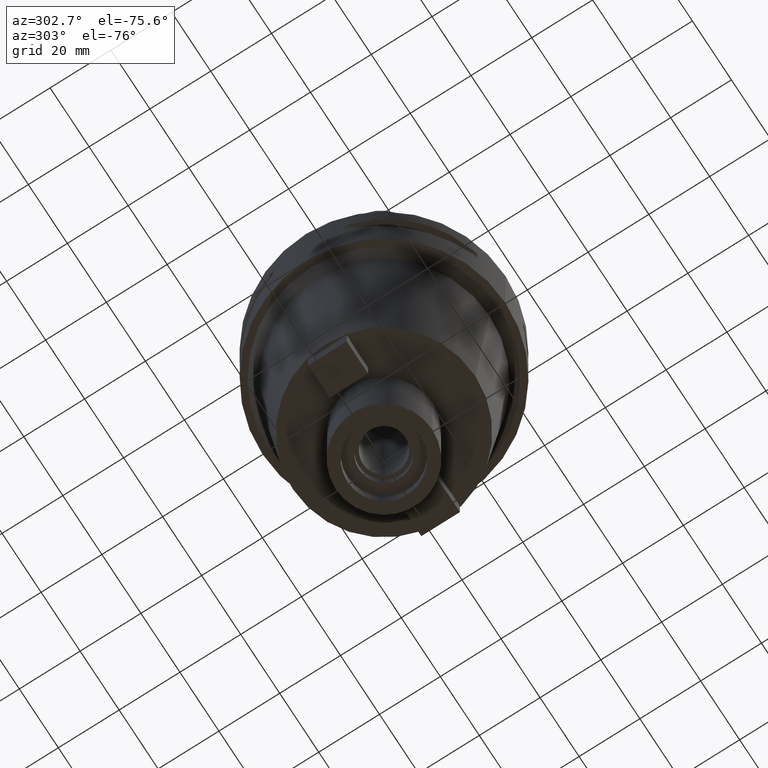
[diagram: clean part render]
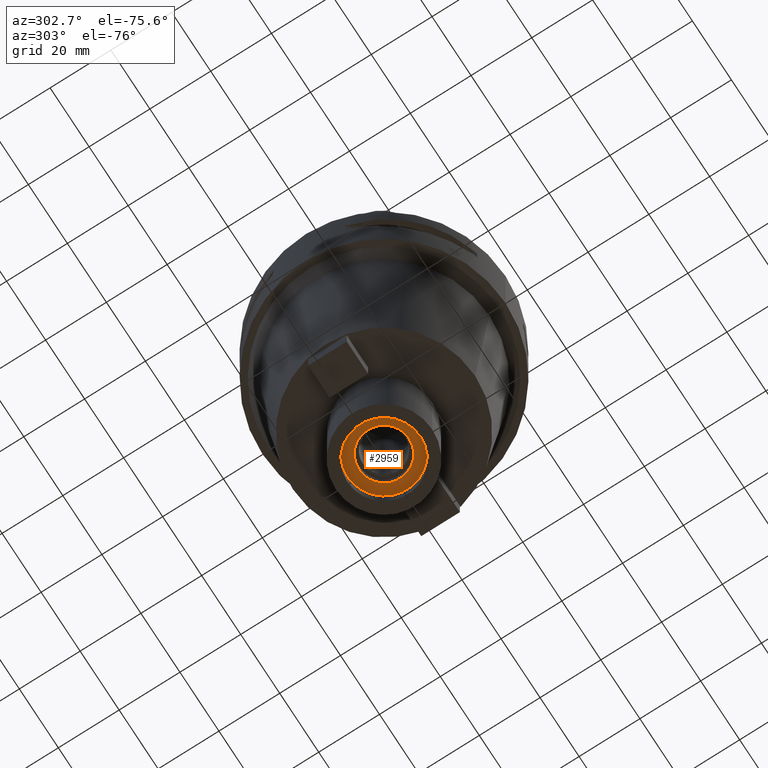
[diagram: same view with one face highlighted and labeled with its STEP entity id]
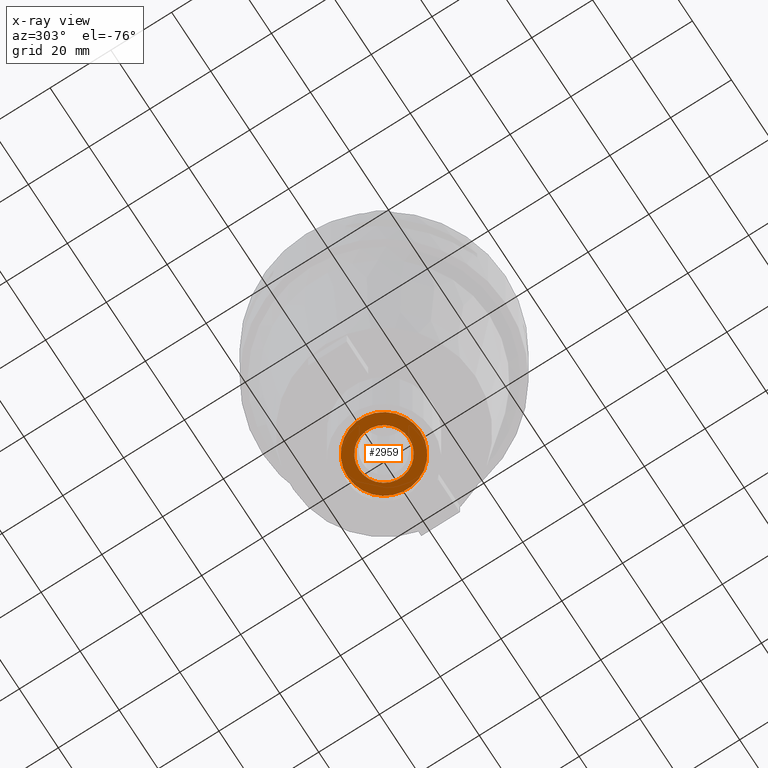
[diagram: x-ray of the same camera — body ghosted, the highlighted face saturated]
A machine part, auxiliary view. The second image highlights one B-rep face of the part: STEP entity #2959.
The next image is the same camera in x-ray: the body ghosted, the highlighted face saturated — about 0% of this face is hidden behind the body in this view.
In plain terms, the highlighted planar face has unit normal (0, 0, -1).
Its self-contained STEP definition (entity closure, byte-faithful):
#700=CARTESIAN_POINT('',(0.E0,1.298125607096E-14,-1.14E2));
#701=DIRECTION('',(0.E0,0.E0,1.E0));
#702=DIRECTION('',(0.E0,-1.E0,0.E0));
#703=AXIS2_PLACEMENT_3D('',#700,#701,#702);
#708=CARTESIAN_POINT('',(0.E0,1.298125607096E-14,-1.14E2));
#709=DIRECTION('',(0.E0,0.E0,1.E0));
#710=DIRECTION('',(0.E0,1.E0,0.E0));
#711=AXIS2_PLACEMENT_3D('',#708,#709,#710);
#716=CARTESIAN_POINT('',(0.E0,1.298125607096E-14,-1.14E2));
#717=DIRECTION('',(0.E0,0.E0,-1.E0));
#718=DIRECTION('',(0.E0,-1.E0,0.E0));
#719=AXIS2_PLACEMENT_3D('',#716,#717,#718);
#724=CARTESIAN_POINT('',(0.E0,1.298125607096E-14,-1.14E2));
#725=DIRECTION('',(0.E0,0.E0,-1.E0));
#726=DIRECTION('',(0.E0,1.E0,0.E0));
#727=AXIS2_PLACEMENT_3D('',#724,#725,#726);
#1826=CARTESIAN_POINT('',(0.E0,1.2E1,-1.14E2));
#1827=VERTEX_POINT('',#1826);
#1828=CARTESIAN_POINT('',(0.E0,-1.2E1,-1.14E2));
#1829=VERTEX_POINT('',#1828);
#1830=CARTESIAN_POINT('',(0.E0,-8.25E0,-1.14E2));
#1831=CARTESIAN_POINT('',(0.E0,8.25E0,-1.14E2));
#1832=VERTEX_POINT('',#1830);
#1833=VERTEX_POINT('',#1831);
#2944=CARTESIAN_POINT('',(0.E0,0.E0,-1.14E2));
#2945=DIRECTION('',(0.E0,0.E0,-1.E0));
#2946=DIRECTION('',(0.E0,-1.E0,0.E0));
#2947=AXIS2_PLACEMENT_3D('',#2944,#2945,#2946);
#2948=PLANE('',#2947);
#2949=ORIENTED_EDGE('',*,*,#2937,.T.);
#2950=ORIENTED_EDGE('',*,*,#2926,.T.);
#2951=EDGE_LOOP('',(#2949,#2950));
#2952=FACE_OUTER_BOUND('',#2951,.F.);
#2954=ORIENTED_EDGE('',*,*,#2953,.T.);
#2956=ORIENTED_EDGE('',*,*,#2955,.T.);
#2957=EDGE_LOOP('',(#2954,#2956));
#2958=FACE_BOUND('',#2957,.F.);
#704=CIRCLE('',#703,1.2E1);
#712=CIRCLE('',#711,1.2E1);
#720=CIRCLE('',#719,8.25E0);
#728=CIRCLE('',#727,8.25E0);
#2926=EDGE_CURVE('',#1827,#1829,#712,.T.);
#2937=EDGE_CURVE('',#1829,#1827,#704,.T.);
#2953=EDGE_CURVE('',#1832,#1833,#720,.T.);
#2955=EDGE_CURVE('',#1833,#1832,#728,.T.);
#2959=ADVANCED_FACE('',(#2952,#2958),#2948,.T.);